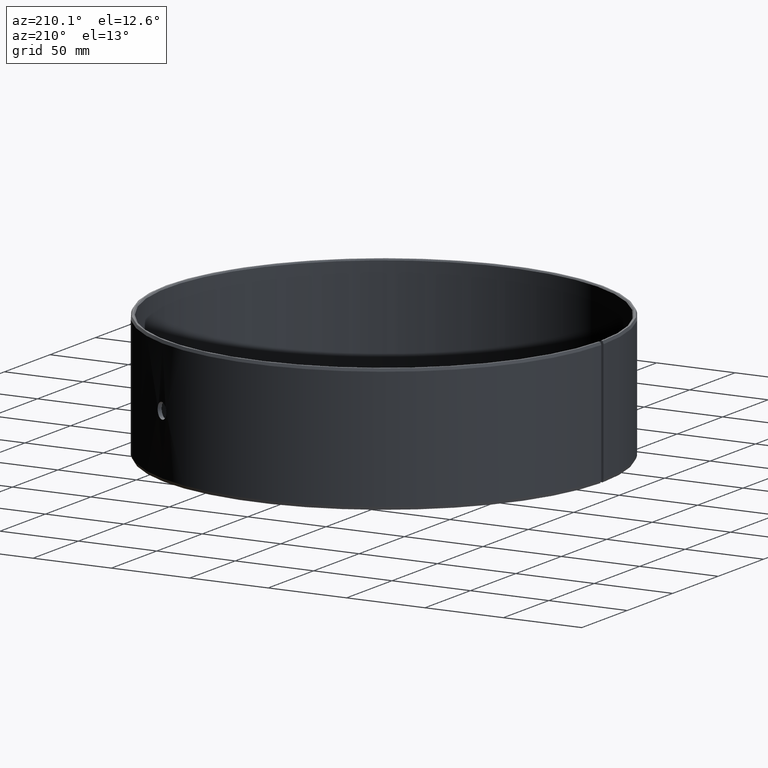
[diagram: clean part render]
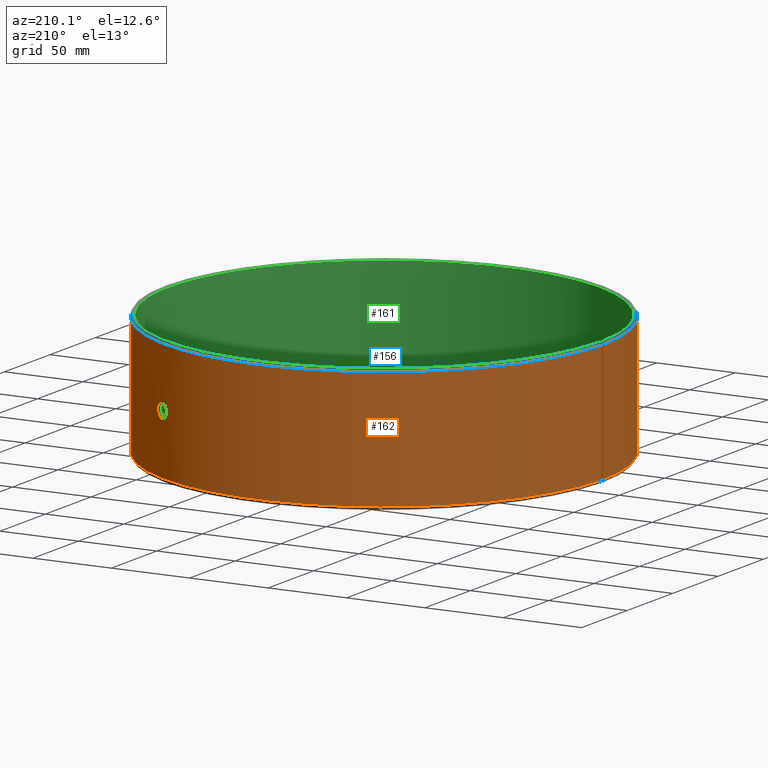
[diagram: same view with three faces highlighted in distinct colors, each labeled with its STEP entity id]
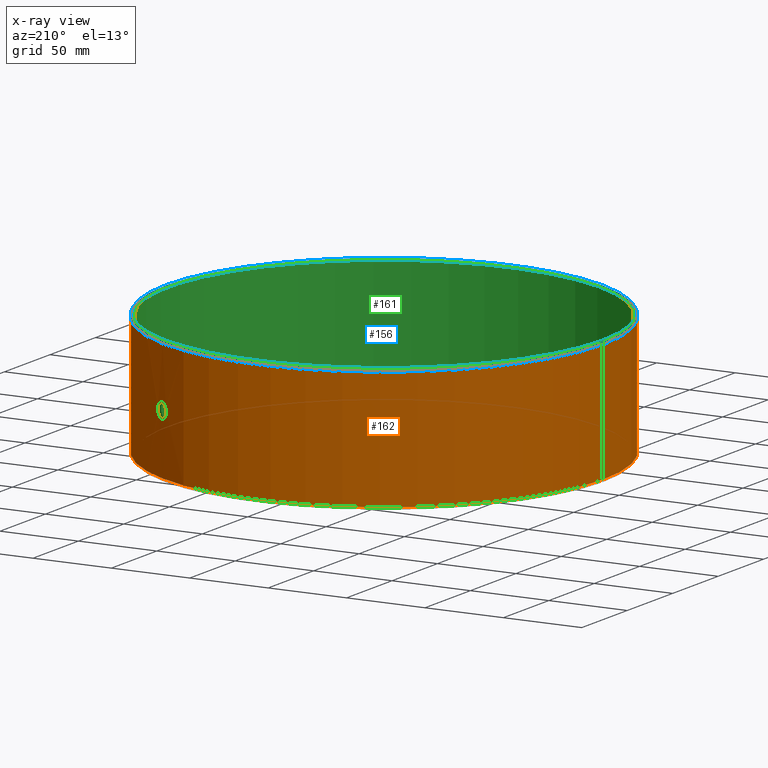
[diagram: x-ray of the same camera — body ghosted, the three highlighted faces saturated]
A machine part, auxiliary view with three faces highlighted in distinct colors.
The next image is the same camera in x-ray (body ghosted, the three faces saturated) — at least one of them is partly hidden behind the body in this view.
Their STEP definitions:

[orange] entity #162 — the highlighted cylindrical surface (partial cylindrical patch) has radius 140 mm, axis along (-0, 0, -1).
#162=ADVANCED_FACE('',(#185,#186),#187,.T.);
#185=FACE_OUTER_BOUND('',#211,.T.);
#186=FACE_BOUND('',#212,.T.);
#187=CYLINDRICAL_SURFACE('',#213,0.14);
#211=EDGE_LOOP('',(#289,#290,#291,#292));
#212=EDGE_LOOP('',(#293));
#213=AXIS2_PLACEMENT_3D('',#294,#295,#296);
#289=ORIENTED_EDGE('',*,*,#314,.T.);
#290=ORIENTED_EDGE('',*,*,#323,.F.);
#291=ORIENTED_EDGE('',*,*,#309,.F.);
#292=ORIENTED_EDGE('',*,*,#324,.T.);
#293=ORIENTED_EDGE('',*,*,#327,.T.);
#294=CARTESIAN_POINT('',(-6.93889390390723E-018,-6.93889390390723E-018,0.0));
#295=DIRECTION('',(6.12323399573677E-017,0.0,-1.0));
#296=DIRECTION('',(-1.0,0.0,-6.12323399573677E-017));
#309=EDGE_CURVE('',#341,#342,#343,.T.);
#314=EDGE_CURVE('',#351,#349,#352,.T.);
#323=EDGE_CURVE('',#342,#349,#365,.T.);
#324=EDGE_CURVE('',#341,#351,#366,.T.);
#327=EDGE_CURVE('',#370,#370,#371,.T.);
#341=VERTEX_POINT('',#389);
#342=VERTEX_POINT('',#390);
#343=CIRCLE('',#391,0.14);
#349=VERTEX_POINT('',#399);
#351=VERTEX_POINT('',#402);
#352=CIRCLE('',#403,0.14);
#365=LINE('',#422,#423);
#366=LINE('',#424,#425);
#370=VERTEX_POINT('',#503);
#371=B_SPLINE_CURVE_WITH_KNOTS('',3,(#504,#505,#506,#507,#508,#509,#510,#511,#512,#513,#514,#515,#516,#517,#518,#519,#520,#521,#522,#523,#524,#525,#526,#527,#528,#529,#530,#531,#532,#533,#534,#535,#536,#537,#538,#539,#540,#541,#542,#543,#544,#545,#546,#547,#548,#549,#550,#551,#552,#553,#554,#555,#556,#557,#558,#559,#560,#561,#562,#563,#564,#565,#566,#567,#568,#569,#570,#571,#572,#573,#574,#575,#576,#577),.UNSPECIFIED.,.T.,.F.,(2,2,2,2,2,2,2,2,2,2,2,2,2,2,2,2,2,2,2,2,2,2,2,2,2,2,2,2,2,2,2,2,2,2,2,2,2,2,2),(-0.000976984626853594,0.0,0.000976984626853581,0.00146547694028038,0.00195396925370718,0.00293095388056076,0.00390793850741434,0.00488492313426793,0.00586190776112151,0.0068388923879751,0.00781587701482868,0.00879286164168227,0.00976984626853585,0.0107468308953894,0.011723815522243,0.0127008001490966,0.0131892924625234,0.0136777847759502,0.0146547694028038,0.0156317540296575,0.0166087386565111,0.0175857232833647,0.0185627079102183,0.0195396925370719,0.0205166771639255,0.0214936617907792,0.0224706464176328,0.0234476310444864,0.02442461567134,0.0249131079847668,0.0254016002981936,0.0263785849250472,0.0273555695519008,0.0283325541787544,0.0288210464921811,0.0293095388056079,0.0302865234324615,0.0312635080593151,0.0322404926861687),.UNSPECIFIED.);
#389=CARTESIAN_POINT('',(0.00244333690121969,0.139978677321895,0.0018));
#390=CARTESIAN_POINT('',(-6.93889390390723E-018,0.14,0.0018));
#391=AXIS2_PLACEMENT_3D('',#591,#592,#593);
#399=CARTESIAN_POINT('',(-1.21430643318376E-017,0.14,0.0782));
#402=CARTESIAN_POINT('',(0.00244333690121968,0.139978677321895,0.0782));
#403=AXIS2_PLACEMENT_3D('',#600,#601,#602);
#422=CARTESIAN_POINT('',(-6.93889390390723E-018,0.14,0.0018));
#423=VECTOR('',#615,1.0);
#424=CARTESIAN_POINT('',(0.00244333690121969,0.139978677321895,0.0018));
#425=VECTOR('',#616,1.0);
#503=CARTESIAN_POINT('',(0.11735167450914,-0.0763451667749892,0.04));
#504=CARTESIAN_POINT('',(0.11735167450914,-0.0763451667749892,0.0396696475729108));
#505=CARTESIAN_POINT('',(0.11735167450914,-0.0763451667749892,0.0403303524270892));
#506=CARTESIAN_POINT('',(0.117369373177266,-0.0763179813553008,0.0406551791864564));
#507=CARTESIAN_POINT('',(0.117421298495152,-0.0762380460744861,0.0411344710019447));
#508=CARTESIAN_POINT('',(0.117442866396506,-0.0762048253084345,0.0412929003762038));
#509=CARTESIAN_POINT('',(0.11749468086562,-0.0761249120590806,0.0416070294067944));
#510=CARTESIAN_POINT('',(0.117525072200925,-0.0760779951449314,0.0417631498251726));
#511=CARTESIAN_POINT('',(0.117627345023496,-0.0759198489668076,0.0422172743875066));
#512=CARTESIAN_POINT('',(0.117710651818668,-0.0757907341994262,0.0425044509373693));
#513=CARTESIAN_POINT('',(0.117906769803501,-0.0754852739053654,0.0430479452274143));
#514=CARTESIAN_POINT('',(0.118020603043029,-0.0753073070073845,0.0433052529930949));
#515=CARTESIAN_POINT('',(0.118268173322319,-0.0749179044711384,0.0437664600523871));
#516=CARTESIAN_POINT('',(0.118402775437573,-0.074705136876297,0.043973425008396));
#517=CARTESIAN_POINT('',(0.118693569523592,-0.0742422471425451,0.0443389450000233));
#518=CARTESIAN_POINT('',(0.118847698682086,-0.0739953716476301,0.0444942608522553));
#519=CARTESIAN_POINT('',(0.11916461512975,-0.0734839098597607,0.0447436314321562));
#520=CARTESIAN_POINT('',(0.119329737933673,-0.0732155570320455,0.0448396120618754));
#521=CARTESIAN_POINT('',(0.119666010424682,-0.0726646413042262,0.044968057206679));
#522=CARTESIAN_POINT('',(0.119834086854243,-0.0723871395586621,0.0449998254897345));
#523=CARTESIAN_POINT('',(0.120170012380337,-0.0718280897016277,0.0450001730900625));
#524=CARTESIAN_POINT('',(0.120339607066808,-0.0715435656649621,0.0449677238329519));
#525=CARTESIAN_POINT('',(0.120666064441254,-0.0709915749178005,0.0448401822427229));
#526=CARTESIAN_POINT('',(0.120823792213441,-0.0707227182263336,0.0447458125911257));
#527=CARTESIAN_POINT('',(0.121128504362471,-0.070199551772563,0.0444955281881057));
#528=CARTESIAN_POINT('',(0.12127503150403,-0.0699459803622358,0.0443389919317218));
#529=CARTESIAN_POINT('',(0.121544901791921,-0.0694759691082461,0.0439771252962164));
#530=CARTESIAN_POINT('',(0.121670013379877,-0.0692564970726873,0.0437705472158819));
#531=CARTESIAN_POINT('',(0.121900398652614,-0.0688501804716036,0.0433040784990324));
#532=CARTESIAN_POINT('',(0.122002187160046,-0.0686694922032994,0.0430510987611125));
#533=CARTESIAN_POINT('',(0.122135192951922,-0.0684324692702243,0.0426450534904493));
#534=CARTESIAN_POINT('',(0.122176272544618,-0.0683590844571834,0.0425051429244442));
#535=CARTESIAN_POINT('',(0.122251846141078,-0.0682238383251738,0.0422160018982398));
#536=CARTESIAN_POINT('',(0.122286434326156,-0.068161806946929,0.0420661215525803));
#537=CARTESIAN_POINT('',(0.122378117403657,-0.0679971482243172,0.0416117241038619));
#538=CARTESIAN_POINT('',(0.122424029616358,-0.0679143657408897,0.0413000596750127));
#539=CARTESIAN_POINT('',(0.122486113131118,-0.0678023317558116,0.0406594687930872));
#540=CARTESIAN_POINT('',(0.122501998948517,-0.0677735955489373,0.0403280872020766));
#541=CARTESIAN_POINT('',(0.122502111262198,-0.0677733925395321,0.0396754655274792));
#542=CARTESIAN_POINT('',(0.1224868516472,-0.0678009974167911,0.0393511444783158));
#543=CARTESIAN_POINT('',(0.122424953984655,-0.067912699246974,0.0387065640457872));
#544=CARTESIAN_POINT('',(0.122378397459365,-0.0679966420879483,0.0383904408109139));
#545=CARTESIAN_POINT('',(0.122257268249367,-0.0682141910467398,0.037788559992393));
#546=CARTESIAN_POINT('',(0.122181922878941,-0.0683491854809572,0.0374983140095005));
#547=CARTESIAN_POINT('',(0.12200296801461,-0.0686681092642857,0.0369505889583152));
#548=CARTESIAN_POINT('',(0.121901385412073,-0.0688484226120109,0.0366986208947834));
#549=CARTESIAN_POINT('',(0.121674164609575,-0.0692491929780181,0.0362371721205005));
#550=CARTESIAN_POINT('',(0.121546919625828,-0.0694724423702599,0.036025889199109));
#551=CARTESIAN_POINT('',(0.121276171631858,-0.0699440069894242,0.0356622316353216));
#552=CARTESIAN_POINT('',(0.121132548487767,-0.070192571476584,0.0355084653351167));
#553=CARTESIAN_POINT('',(0.120828274762235,-0.0707150578845736,0.0352572160803641));
#554=CARTESIAN_POINT('',(0.120667385999889,-0.0709893237897796,0.0351605872597163));
#555=CARTESIAN_POINT('',(0.120342025789638,-0.0715394923452956,0.0350329708255123));
#556=CARTESIAN_POINT('',(0.120175861925698,-0.0718183190799134,0.0350003365994827));
#557=CARTESIAN_POINT('',(0.119836199170086,-0.072383659160864,0.034999668530813));
#558=CARTESIAN_POINT('',(0.119667187224311,-0.0726626891380919,0.0350318634396762));
#559=CARTESIAN_POINT('',(0.1194175005548,-0.0730717871957686,0.0351266851227958));
#560=CARTESIAN_POINT('',(0.119334771790309,-0.0732068088654926,0.0351661039189288));
#561=CARTESIAN_POINT('',(0.119170367992463,-0.0734741316046327,0.0352608701338384));
#562=CARTESIAN_POINT('',(0.119088309202011,-0.0736070486174327,0.0353165770446273));
#563=CARTESIAN_POINT('',(0.118848709111222,-0.0739937586668469,0.035504619133397));
#564=CARTESIAN_POINT('',(0.118696511201383,-0.0742375381589293,0.0356580250402823));
#565=CARTESIAN_POINT('',(0.118407426515565,-0.0746977589305034,0.0360200783883359));
#566=CARTESIAN_POINT('',(0.118269679950184,-0.0749155269742005,0.0362310542352326));
#567=CARTESIAN_POINT('',(0.118021777359352,-0.075305467572286,0.0366922417519012));
#568=CARTESIAN_POINT('',(0.117910161435676,-0.0754799792118644,0.0369437054585297));
#569=CARTESIAN_POINT('',(0.117761992198576,-0.0757107756618919,0.0373527675669739));
#570=CARTESIAN_POINT('',(0.117715771819553,-0.0757826038969131,0.0374948776681353));
#571=CARTESIAN_POINT('',(0.117631922026252,-0.0759126926730909,0.0377837016593228));
#572=CARTESIAN_POINT('',(0.11759400903678,-0.0759713955805388,0.0379311177658494));
#573=CARTESIAN_POINT('',(0.117492171169104,-0.0761288732686767,0.0383822168822981));
#574=CARTESIAN_POINT('',(0.117439910192507,-0.0762093936822829,0.0386958232972935));
#575=CARTESIAN_POINT('',(0.117369375682907,-0.07631797850605,0.0393427482584905));
#576=CARTESIAN_POINT('',(0.11735167450914,-0.0763451667749892,0.0396696475729108));
#577=CARTESIAN_POINT('',(0.11735167450914,-0.0763451667749892,0.0403303524270892));
#591=CARTESIAN_POINT('',(-6.93889390390723E-018,-6.93889390390723E-018,0.0018));
#592=DIRECTION('',(6.12323399573677E-017,0.0,-1.0));
#593=DIRECTION('',(-1.0,0.0,-6.12323399573677E-017));
#600=CARTESIAN_POINT('',(-1.21430643318376E-017,-6.93889390390723E-018,0.0782));
#601=DIRECTION('',(6.12323399573677E-017,0.0,-1.0));
#602=DIRECTION('',(-1.0,0.0,-6.12323399573677E-017));
#615=DIRECTION('',(-6.81174139781469E-017,-3.63292874550116E-016,1.0));
#616=DIRECTION('',(-7.44567002504426E-017,-3.63117382175513E-016,1.0));

[blue] entity #156 — the highlighted conical surface has half-angle 20 deg.
#156=ADVANCED_FACE('',(#172),#173,.T.);
#172=FACE_OUTER_BOUND('',#198,.T.);
#173=CONICAL_SURFACE('',#199,0.14,0.349065850398864);
#198=EDGE_LOOP('',(#238,#239,#240,#241));
#199=AXIS2_PLACEMENT_3D('',#242,#243,#244);
#238=ORIENTED_EDGE('',*,*,#312,.T.);
#239=ORIENTED_EDGE('',*,*,#313,.F.);
#240=ORIENTED_EDGE('',*,*,#314,.F.);
#241=ORIENTED_EDGE('',*,*,#315,.T.);
#242=CARTESIAN_POINT('',(-1.21430643318376E-017,-6.93889390390723E-018,0.0782));
#243=DIRECTION('',(6.12323399573677E-017,-0.0,-1.0));
#244=DIRECTION('',(-1.0,0.0,-6.12323399573677E-017));
#312=EDGE_CURVE('',#346,#347,#348,.T.);
#313=EDGE_CURVE('',#349,#347,#350,.T.);
#314=EDGE_CURVE('',#351,#349,#352,.T.);
#315=EDGE_CURVE('',#351,#346,#353,.T.);
#346=VERTEX_POINT('',#396);
#347=VERTEX_POINT('',#397);
#348=CIRCLE('',#398,0.139344853578321);
#349=VERTEX_POINT('',#399);
#350=LINE('',#400,#401);
#351=VERTEX_POINT('',#402);
#352=CIRCLE('',#403,0.14);
#353=LINE('',#404,#405);
#396=CARTESIAN_POINT('',(0.00243190301959261,0.139323630682189,0.08));
#397=CARTESIAN_POINT('',(-1.21430643318376E-017,0.139344853578321,0.08));
#398=AXIS2_PLACEMENT_3D('',#596,#597,#598);
#399=CARTESIAN_POINT('',(-1.21430643318376E-017,0.14,0.0782));
#400=CARTESIAN_POINT('',(-1.21430643318376E-017,0.14,0.0782));
#401=VECTOR('',#599,1.0);
#402=CARTESIAN_POINT('',(0.00244333690121968,0.139978677321895,0.0782));
#403=AXIS2_PLACEMENT_3D('',#600,#601,#602);
#404=CARTESIAN_POINT('',(0.00244333690121968,0.139978677321895,0.0782));
#405=VECTOR('',#603,1.0);
#596=CARTESIAN_POINT('',(-1.21430643318376E-017,-6.93889390390723E-018,0.08));
#597=DIRECTION('',(6.12323399573677E-017,0.0,-1.0));
#598=DIRECTION('',(-1.0,0.0,-6.12323399573677E-017));
#599=DIRECTION('',(0.0,-0.342020143325667,0.939692620785909));
#600=CARTESIAN_POINT('',(-1.21430643318376E-017,-6.93889390390723E-018,0.0782));
#601=DIRECTION('',(6.12323399573677E-017,0.0,-1.0));
#602=DIRECTION('',(-1.0,0.0,-6.12323399573677E-017));
#603=DIRECTION('',(-0.00596907455105752,-0.341968052001227,0.939692620785909));

[green] entity #161 — the highlighted cylindrical surface (partial cylindrical patch) has radius 137.5 mm, axis along (-0, 0, -1).
#161=ADVANCED_FACE('',(#182,#183),#184,.F.);
#182=FACE_OUTER_BOUND('',#208,.T.);
#183=FACE_BOUND('',#209,.T.);
#184=CYLINDRICAL_SURFACE('',#210,0.1375);
#208=EDGE_LOOP('',(#281,#282,#283,#284));
#209=EDGE_LOOP('',(#285));
#210=AXIS2_PLACEMENT_3D('',#286,#287,#288);
#281=ORIENTED_EDGE('',*,*,#304,.T.);
#282=ORIENTED_EDGE('',*,*,#322,.F.);
#283=ORIENTED_EDGE('',*,*,#319,.F.);
#284=ORIENTED_EDGE('',*,*,#325,.T.);
#285=ORIENTED_EDGE('',*,*,#326,.T.);
#286=CARTESIAN_POINT('',(-6.93889390390723E-018,-6.93889390390723E-018,0.0));
#287=DIRECTION('',(6.12323399573677E-017,0.0,-1.0));
#288=DIRECTION('',(-1.0,0.0,-6.12323399573677E-017));
#304=EDGE_CURVE('',#333,#331,#334,.T.);
#319=EDGE_CURVE('',#359,#360,#361,.T.);
#322=EDGE_CURVE('',#360,#331,#364,.T.);
#325=EDGE_CURVE('',#359,#333,#367,.T.);
#326=EDGE_CURVE('',#368,#368,#369,.T.);
#331=VERTEX_POINT('',#375);
#333=VERTEX_POINT('',#378);
#334=CIRCLE('',#379,0.1375);
#359=VERTEX_POINT('',#413);
#360=VERTEX_POINT('',#414);
#361=CIRCLE('',#415,0.1375);
#364=LINE('',#420,#421);
#367=LINE('',#426,#427);
#368=VERTEX_POINT('',#428);
#369=B_SPLINE_CURVE_WITH_KNOTS('',3,(#429,#430,#431,#432,#433,#434,#435,#436,#437,#438,#439,#440,#441,#442,#443,#444,#445,#446,#447,#448,#449,#450,#451,#452,#453,#454,#455,#456,#457,#458,#459,#460,#461,#462,#463,#464,#465,#466,#467,#468,#469,#470,#471,#472,#473,#474,#475,#476,#477,#478,#479,#480,#481,#482,#483,#484,#485,#486,#487,#488,#489,#490,#491,#492,#493,#494,#495,#496,#497,#498,#499,#500,#501,#502),.UNSPECIFIED.,.T.,.F.,(2,2,2,2,2,2,2,2,2,2,2,2,2,2,2,2,2,2,2,2,2,2,2,2,2,2,2,2,2,2,2,2,2,2,2,2,2,2,2),(-0.000976987452369842,0.0,0.000976987452369857,0.00146548117855478,0.00195397490473971,0.00293096235710954,0.00390794980947937,0.00488493726184919,0.00586192471421902,0.00683891216658885,0.00781589961895868,0.00879288707132851,0.00976987452369834,0.0107468619760682,0.011723849428438,0.0127008368808078,0.0131893306069927,0.0136778243331776,0.0146548117855475,0.0156317992379173,0.0166087866902872,0.017585774142657,0.0185627615950268,0.0195397490473967,0.0205167364997665,0.0214937239521364,0.0224707114045062,0.023447698856876,0.0244246863092459,0.0249131800354308,0.0254016737616158,0.0263786612139856,0.0273556486663555,0.0283326361187254,0.0288211298449103,0.0293096235710953,0.0302866110234651,0.0312635984758349,0.0322405859282048),.UNSPECIFIED.);
#375=CARTESIAN_POINT('',(-6.93889390390723E-018,0.1375,0.0008));
#378=CARTESIAN_POINT('',(0.00239970588512649,0.137479058084004,0.0008));
#379=AXIS2_PLACEMENT_3D('',#582,#583,#584);
#413=CARTESIAN_POINT('',(0.00239970588512648,0.137479058084004,0.0792));
#414=CARTESIAN_POINT('',(-1.21430643318376E-017,0.1375,0.0792));
#415=AXIS2_PLACEMENT_3D('',#609,#610,#611);
#420=CARTESIAN_POINT('',(-1.21430643318376E-017,0.1375,0.0792));
#421=VECTOR('',#614,1.0);
#426=CARTESIAN_POINT('',(0.00239970588512648,0.137479058084004,0.0792));
#427=VECTOR('',#617,1.0);
#428=CARTESIAN_POINT('',(0.115207363395044,-0.0750567346715959,0.04));
#429=CARTESIAN_POINT('',(0.115207363395044,-0.0750567346715959,0.0403303534577087));
#430=CARTESIAN_POINT('',(0.115207363395044,-0.0750567346715958,0.0396696465422912));
#431=CARTESIAN_POINT('',(0.115225080417777,-0.0750295600487514,0.0393448189624742));
#432=CARTESIAN_POINT('',(0.115277058082488,-0.0749496556993076,0.0388655261743568));
#433=CARTESIAN_POINT('',(0.115298647571448,-0.0749164477002706,0.0387070965189608));
#434=CARTESIAN_POINT('',(0.115350513045276,-0.0748365646460616,0.0383929670027833));
#435=CARTESIAN_POINT('',(0.115380933895812,-0.07478966529276,0.0382368465799511));
#436=CARTESIAN_POINT('',(0.115483303796367,-0.0746315771598519,0.037782722392463));
#437=CARTESIAN_POINT('',(0.115566687203495,-0.07450250836002,0.0374955462322136));
#438=CARTESIAN_POINT('',(0.115762973358955,-0.0741971491515621,0.0369520526872318));
#439=CARTESIAN_POINT('',(0.115876898495551,-0.0740192382241298,0.0366947460030091));
#440=CARTESIAN_POINT('',(0.116124649645468,-0.0736299461968164,0.0362335405634419));
#441=CARTESIAN_POINT('',(0.116259341737594,-0.0734172334451862,0.0360265759714351));
#442=CARTESIAN_POINT('',(0.116550304842522,-0.0729544457118192,0.0356610559583176));
#443=CARTESIAN_POINT('',(0.116704510615856,-0.0727076179618814,0.0355057406897912));
#444=CARTESIAN_POINT('',(0.117021555085,-0.0721962336501415,0.0352563697962879));
#445=CARTESIAN_POINT('',(0.117186730321012,-0.0719279110208639,0.0351603885813561));
#446=CARTESIAN_POINT('',(0.117523073165655,-0.0713770370697396,0.0350319430444733));
#447=CARTESIAN_POINT('',(0.117691167779342,-0.0710995455195905,0.0350001745346417));
#448=CARTESIAN_POINT('',(0.118027094577784,-0.0705404939866774,0.0349998268859475));
#449=CARTESIAN_POINT('',(0.118196671686247,-0.0702559578949867,0.0350322764013195));
#450=CARTESIAN_POINT('',(0.118523059761194,-0.0697039247266114,0.0351598184373159));
#451=CARTESIAN_POINT('',(0.11868073674922,-0.0694350370043797,0.0352541884001124));
#452=CARTESIAN_POINT('',(0.118985320694202,-0.0689117921580555,0.0355044738463849));
#453=CARTESIAN_POINT('',(0.119131769145321,-0.0686581751586451,0.0356610097367842));
#454=CARTESIAN_POINT('',(0.119401471111107,-0.0681880644417534,0.0360228758039748));
#455=CARTESIAN_POINT('',(0.119526492216595,-0.067968538327695,0.0362294537182392));
#456=CARTESIAN_POINT('',(0.119756693818235,-0.0675621109034695,0.0366959231753932));
#457=CARTESIAN_POINT('',(0.119858390330217,-0.0673813705689403,0.0369488996696365));
#458=CARTESIAN_POINT('',(0.119991270162751,-0.0671442722263372,0.0373549441447711));
#459=CARTESIAN_POINT('',(0.120032309492047,-0.0670708631148982,0.0374948546496206));
#460=CARTESIAN_POINT('',(0.120107807196775,-0.0669355708973511,0.0377839961037145));
#461=CARTESIAN_POINT('',(0.120142359482635,-0.0668735179616366,0.0379338763095693));
#462=CARTESIAN_POINT('',(0.120233945391742,-0.0667088012335353,0.0383882722388258));
#463=CARTESIAN_POINT('',(0.120279806584152,-0.066625987646027,0.0386999365854128));
#464=CARTESIAN_POINT('',(0.120341820482934,-0.0665139109102963,0.0393405296015873));
#465=CARTESIAN_POINT('',(0.120357687888728,-0.0664851635035446,0.0396719120331814));
#466=CARTESIAN_POINT('',(0.120357800094034,-0.0664849603785546,0.0403245345791657));
#467=CARTESIAN_POINT('',(0.12034255820305,-0.0665125759729467,0.0406488567611276));
#468=CARTESIAN_POINT('',(0.120280729803187,-0.0666243207501899,0.0412934408387059));
#469=CARTESIAN_POINT('',(0.120234225283858,-0.0667082946193709,0.0416095621170572));
#470=CARTESIAN_POINT('',(0.120113224075906,-0.0669259210076738,0.0422114429305049));
#471=CARTESIAN_POINT('',(0.120037954804965,-0.0670609636167749,0.0425016917912406));
#472=CARTESIAN_POINT('',(0.119859170520588,-0.0673799872149416,0.0430494123819463));
#473=CARTESIAN_POINT('',(0.119757678776664,-0.0675603540305473,0.0433013793872023));
#474=CARTESIAN_POINT('',(0.119530639766663,-0.0679612332118813,0.0437628277798934));
#475=CARTESIAN_POINT('',(0.119403486843526,-0.0681845381973177,0.0439741107568085));
#476=CARTESIAN_POINT('',(0.119132908870013,-0.0686562010581915,0.0443377663641499));
#477=CARTESIAN_POINT('',(0.118989362606184,-0.0689048110182036,0.044491532859267));
#478=CARTESIAN_POINT('',(0.118685217045823,-0.0694273768024266,0.0447427833887936));
#479=CARTESIAN_POINT('',(0.118524381067941,-0.0697016730706318,0.0448394119521438));
#480=CARTESIAN_POINT('',(0.118199090492969,-0.0702518835549527,0.0449670287970238));
#481=CARTESIAN_POINT('',(0.118032944252468,-0.0705307225122199,0.0449996634966482));
#482=CARTESIAN_POINT('',(0.11769327881221,-0.071096067890098,0.0450003313760546));
#483=CARTESIAN_POINT('',(0.117524250609257,-0.0713750839610765,0.0449681365053803));
#484=CARTESIAN_POINT('',(0.117274511445635,-0.0717841520679678,0.0448733143692973));
#485=CARTESIAN_POINT('',(0.117191760942462,-0.0719191614947739,0.0448338953267116));
#486=CARTESIAN_POINT('',(0.117027305644188,-0.0721864554924845,0.0447391282621643));
#487=CARTESIAN_POINT('',(0.116945217376317,-0.0723193551372025,0.0446834209930742));
#488=CARTESIAN_POINT('',(0.116705521902019,-0.0727060048152613,0.0444953794961648));
#489=CARTESIAN_POINT('',(0.116553247840563,-0.072949737918612,0.0443419738683361));
#490=CARTESIAN_POINT('',(0.116263994881002,-0.0734098585946612,0.0439799194862304));
#491=CARTESIAN_POINT('',(0.116126156733936,-0.0736275702444995,0.043768944115279));
#492=CARTESIAN_POINT('',(0.115878073901982,-0.0740173990806897,0.0433077595110177));
#493=CARTESIAN_POINT('',(0.115766367611403,-0.0741918564471653,0.0430562963536319));
#494=CARTESIAN_POINT('',(0.11561807072995,-0.0744225777498884,0.0426472323857064));
#495=CARTESIAN_POINT('',(0.115571809703488,-0.0744943809321976,0.0425051230852903));
#496=CARTESIAN_POINT('',(0.115487884433202,-0.0746244231988016,0.042216301235209));
#497=CARTESIAN_POINT('',(0.115449936214086,-0.074683104756854,0.0420688858054071));
#498=CARTESIAN_POINT('',(0.115348001761759,-0.0748405245933528,0.0416177873592183));
#499=CARTESIAN_POINT('',(0.115295688012724,-0.0749210151912278,0.0413041759102352));
#500=CARTESIAN_POINT('',(0.115225082933942,-0.0750295572056615,0.040657252776814));
#501=CARTESIAN_POINT('',(0.115207363395044,-0.0750567346715959,0.0403303534577087));
#502=CARTESIAN_POINT('',(0.115207363395044,-0.0750567346715958,0.0396696465422912));
#582=CARTESIAN_POINT('',(-6.93889390390723E-018,-6.93889390390723E-018,0.0008));
#583=DIRECTION('',(6.12323399573677E-017,0.0,-1.0));
#584=DIRECTION('',(-1.0,0.0,-6.12323399573677E-017));
#609=CARTESIAN_POINT('',(-1.21430643318376E-017,-6.93889390390723E-018,0.0792));
#610=DIRECTION('',(6.12323399573677E-017,0.0,-1.0));
#611=DIRECTION('',(-1.0,0.0,-6.12323399573677E-017));
#614=DIRECTION('',(6.63797248460513E-017,3.5402519917894E-016,-1.0));
#617=DIRECTION('',(7.25575325395119E-017,3.53881445173179E-016,-1.0));